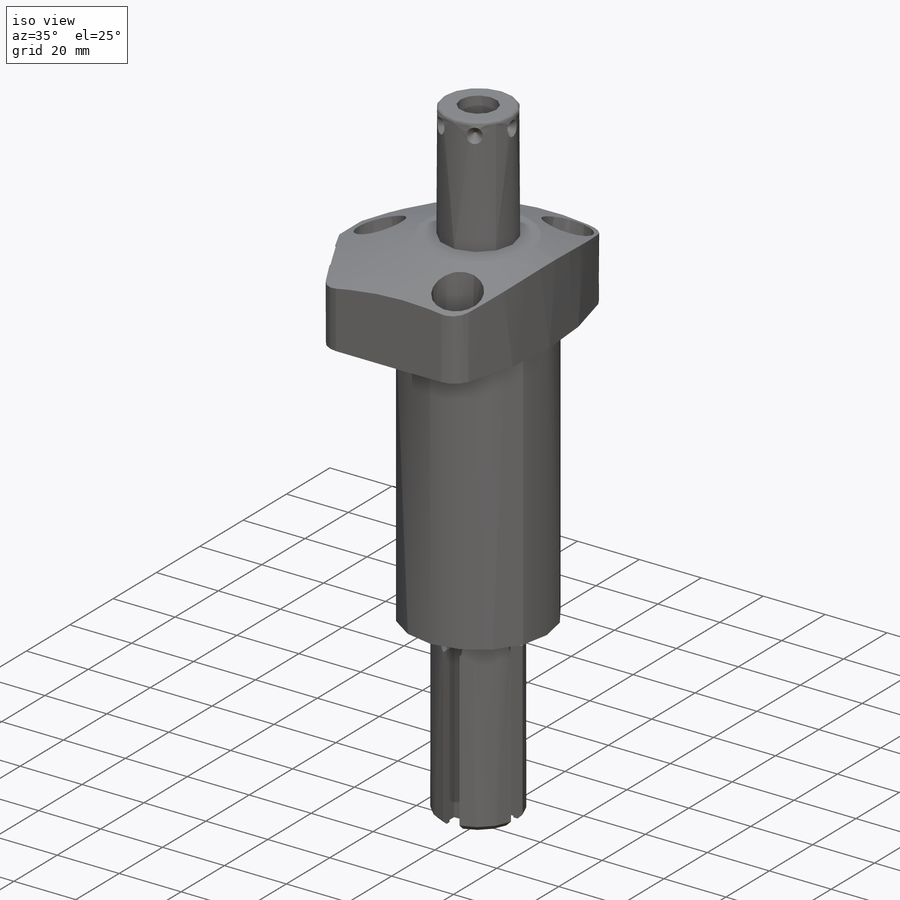
[diagram: iso view]
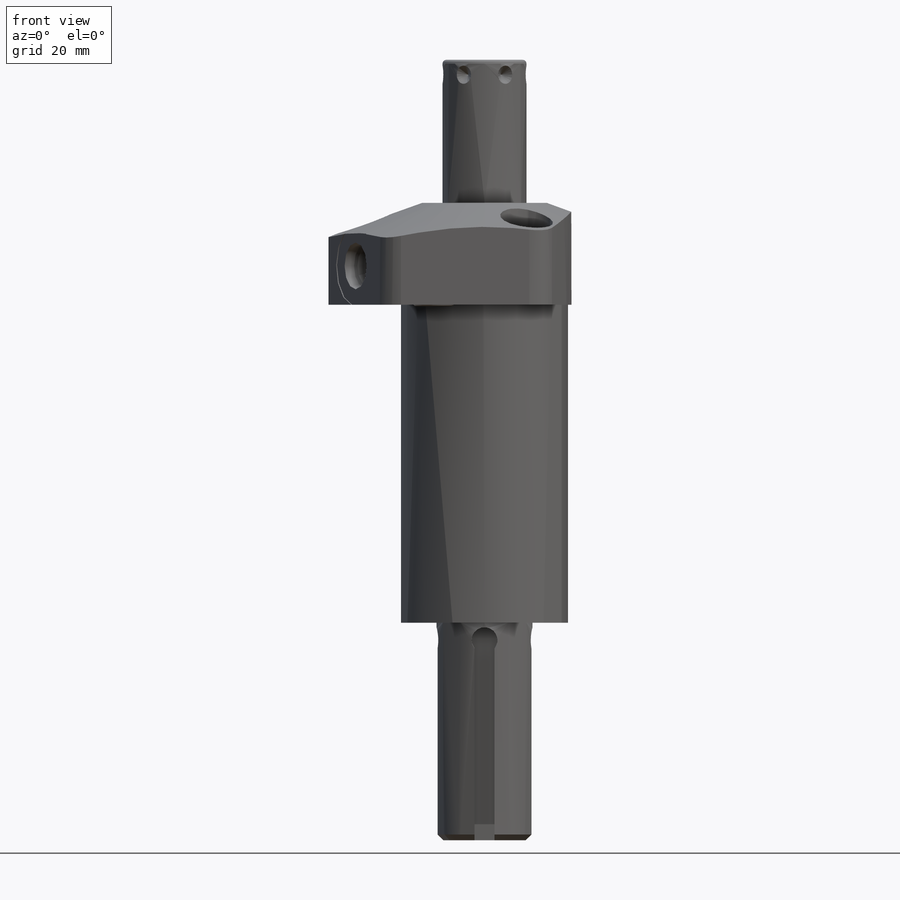
[diagram: front view]
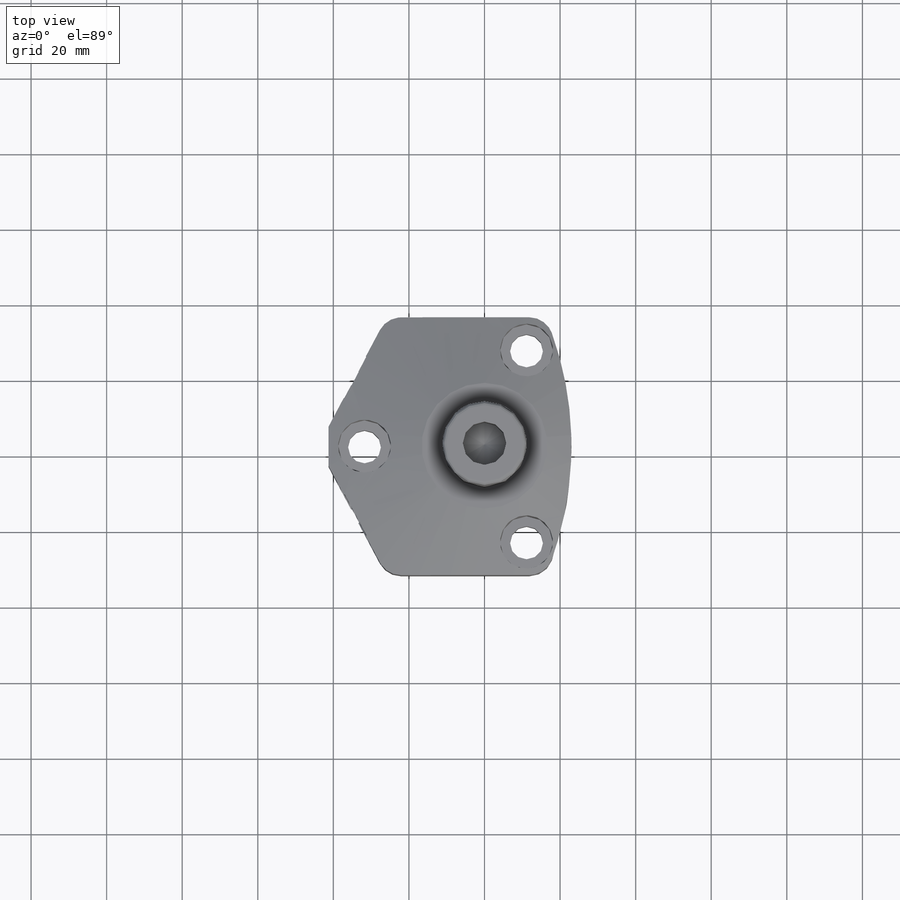
[diagram: top view]
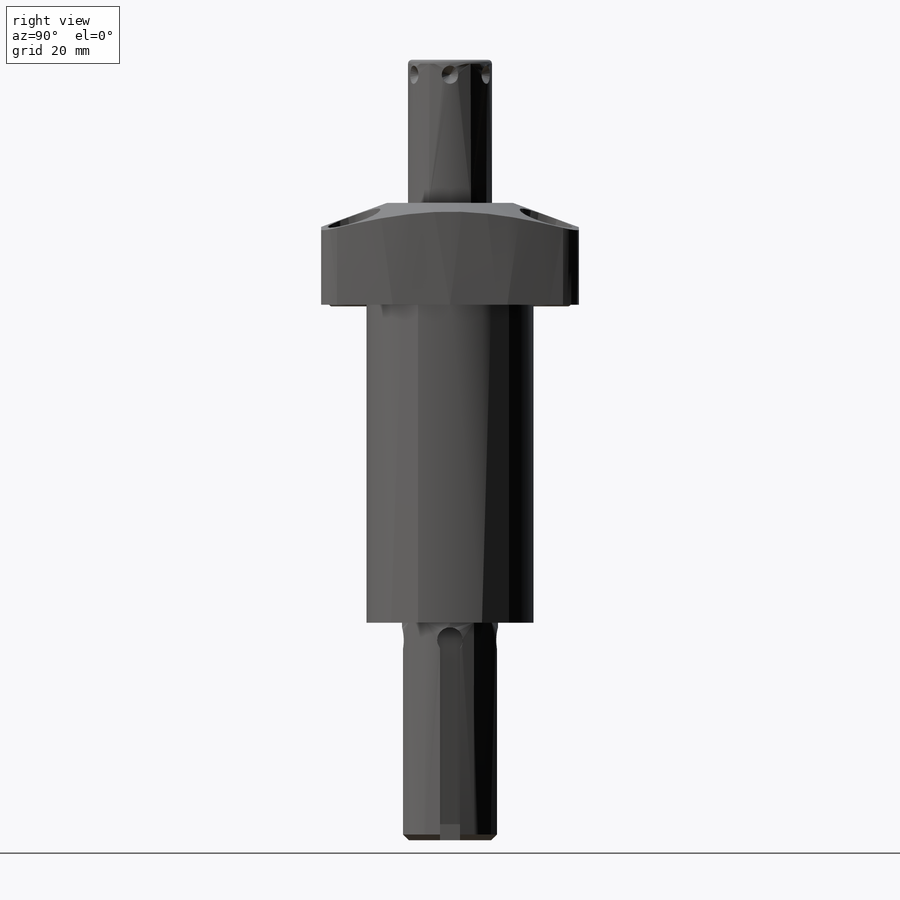
[diagram: right view]
SOLIDWORKS PART (.sldprt)
format: sldprt  version: not decoded by parser v0  size: 1,153,024 bytes
history: native  units: mm
features: sketch x22, plane x13, cut_extrude x9, cut_revolve x7, revolve x3, fillet x3, mirror x2, pattern_circular x2, material x1, hole x1, extrude x1, chamfer x1 (+11 scaffold rows collapsed)
feature tree (76):
  scaffold x11  (default folders/planes/origin — collapsed)
  material  "Alloy Steel"
  plane  "Plane1"
  sketch  "Sketch1"  dims[D1=111.125mm D2=26.9748mm D3=88.9mm D4=44.196mm]
  revolve  "Revolve1"  Angle=360deg
  plane  "Plane2"
  sketch  "Sketch2"  dims[D1=68.2244mm D2=0.0mm]
  cut_extrude  "Cut-Extrude1"  [1 undecoded]
  plane  "Plane3"
  sketch  "Sketch3"  dims[c1.D1=~128.32842mm c2.D1=28.0deg c2.D2=38.8874mm c2.D3=0.0mm]
  cut_extrude  "Cut-Extrude2"  Depth=0mm
  plane  "Plane4"
  sketch  "S2D0002"  dims[D3=88.9mm D1=65.8876mm D2=41.275mm]
  cut_extrude  "Cut-Extrude3"  Depth=38.0873mm
  fillet  "Fillet1"  Radius=6.35mm
  fillet  "Fillet2"  Radius=6.35mm
  fillet  "Fillet3"  Radius=6.35mm
  plane  "Plane5"
  sketch  "Sketch5"  dims[c1.D1=33.274mm c1.D2=~34.151331mm c2.D2=20.0deg c2.D3=47.625mm]
  cut_revolve  "Cut-Revolve1"  Angle=360deg
  plane  "Plane6"
  sketch  "Sketch6"  dims[D1=15.748mm]
  cut_revolve  "Cut-Revolve2"  Angle=360deg
  plane  "Plane7"
  sketch  "Sketch7"  dims[D1=15.748mm]
  cut_revolve  "Cut-Revolve3"  Angle=360deg
  plane  "Plane8"
  sketch  "Sketch8"  dims[D1=12.573mm]
  cut_revolve  "Cut-Revolve4"  Angle=360deg
  plane  "Plane9"
  sketch  "Sketch9"  dims[D1=12.573mm]
  cut_revolve  "Cut-Revolve5"  Angle=360deg
  sketch  "Sketch17"  dims[D1=20.955mm]
  cut_extrude  "Cut-Extrude4"  Depth=0.254mm
  sketch  "Sketch18"  dims[D1=11.1252mm]
  cut_extrude  "Cut-Extrude5"  Depth=2.667mm
  mirror  "Mirror1"
  plane  "Plane10"
  sketch  "Sketch10"  dims[D2=1.016mm D1=64.8462mm D3=22.225mm]
  revolve  "Revolve2"  Angle=360deg
  plane  "Plane11"
  sketch  "S2D0001"  dims[c1.D1=11.5062mm c1.D2=17.018mm c1.D3=5.7531mm c2.D3=59.0deg]
  cut_revolve  "Cut-Revolve6"  Angle=360deg
  plane  "Plane13"
  sketch  "Sketch14"  dims[D1=2.54mm D2=7.9502mm]
  revolve  "Revolve3"  Angle=360deg
  plane  "Plane14"
  sketch  "Sketch15"  dims[c1.D1=3.9624mm c1.D2=4.826mm c1.D3=2.413mm c2.D3=45.0deg]
  cut_revolve  "Cut-Revolve7"  Angle=360deg
  pattern_circular  "CirPattern1"  Count=6 Angle=360deg
  hole  "Hole1"  Diameter=8.7376mm Depth=26.9748mm
  sketch  "Sketch20"  dims[D1=11.1252mm D2=25.4mm D3=31.75mm]
  sketch  "Sketch19"  dims[Diameter=8.7376mm Depth=26.9748mm C-Bore Diameter=13.9954mm C-Bore Depth=16.6624mm]
  mirror  "Mirror2"
  sketch  "Sketch21"  dims[D1=42.0624mm]
  cut_extrude  "Cut-Extrude6"  Depth=0.127mm
  sketch  "Sketch22"  dims[D2=41.5544mm D1=0.0mm]
  cut_extrude  "Cut-Extrude7"  Depth=1.397mm
  sketch  "Sketch23"  dims[D1=25.4mm]
  extrude  "Extrude1"  Depth=57.6834mm
  chamfer  "Chamfer1"  Distance=1.524mm Angle=45deg
  sketch  "Sketch25"  dims[c1.D4=24.384mm c1.D1=5.2832mm c1.D2=6.858mm c1.D3=3.302mm c2.D4=6.4897mm]
  cut_extrude  "Cut-Extrude8"  Depth=4.7752mm
  sketch  "Sketch26"  dims[D1=6.858mm]
  cut_extrude  "Cut-Extrude9"  [1 undecoded]
  pattern_circular  "CirPattern2"  Count=4 Angle=360deg
decode coverage: 47 of 51 modeling features carry decoded parameters
note: ~ marks probable driven/reference dimensions
note: 2 parameter values undecoded
note: suppression state not decoded; provenance and decode notes live in map.json
